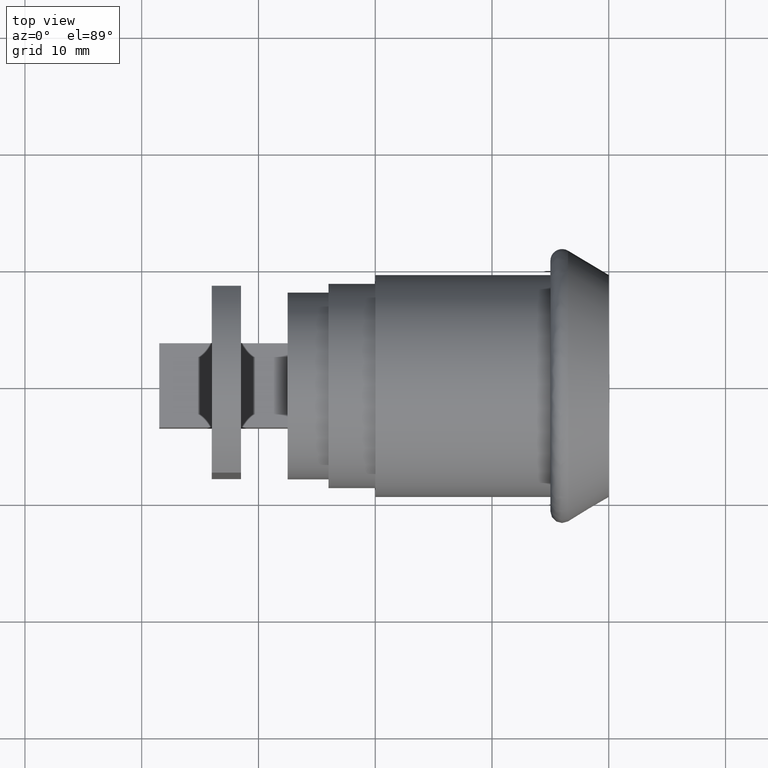
[diagram: clean part render]
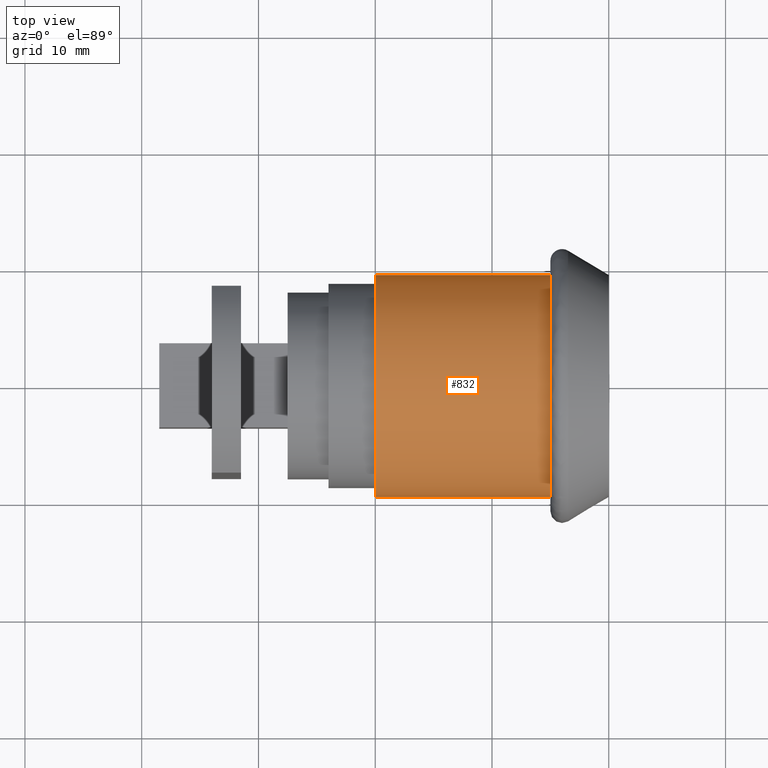
[diagram: same view with one face highlighted and labeled with its STEP entity id]
A machine part, top view. The second image highlights one B-rep face of the part: STEP entity #832.
In plain terms, the highlighted cylindrical surface (bore or boss wall) has radius 9.5 mm, axis along (1, 0, 0).
Its self-contained STEP definition (entity closure, byte-faithful):
#777=CARTESIAN_POINT('',(-5.000000000000426,9.500000000000739,0.0));
#778=VERTEX_POINT('',#777);
#779=CARTESIAN_POINT('',(-5.000000000000426,-9.500000000000739,0.0));
#780=VERTEX_POINT('',#779);
#781=CARTESIAN_POINT('',(-5.000000000000426,0.0,0.0));
#782=DIRECTION('',(1.0,0.0,0.0));
#783=DIRECTION('',(0.0,1.0,0.0));
#784=AXIS2_PLACEMENT_3D('',#781,#782,#783);
#785=CIRCLE('',#784,9.500000000000739);
#786=EDGE_CURVE('',#778,#780,#785,.T.);
#788=CARTESIAN_POINT('',(-5.000000000000426,0.0,0.0));
#789=DIRECTION('',(1.0,0.0,0.0));
#790=DIRECTION('',(0.0,1.0,0.0));
#791=AXIS2_PLACEMENT_3D('',#788,#789,#790);
#792=CIRCLE('',#791,9.500000000000739);
#793=EDGE_CURVE('',#780,#778,#792,.T.);
#798=CARTESIAN_POINT('',(-5.000000000000426,0.0,0.0));
#799=DIRECTION('',(1.0,0.0,0.0));
#800=DIRECTION('',(0.0,1.0,0.0));
#801=AXIS2_PLACEMENT_3D('',#798,#799,#800);
#802=CYLINDRICAL_SURFACE('',#801,9.500000000000739);
#803=CARTESIAN_POINT('',(-19.999999999999986,9.500000000000739,0.0));
#804=VERTEX_POINT('',#803);
#805=CARTESIAN_POINT('',(-5.000000000000426,9.500000000000739,0.0));
#806=DIRECTION('',(-1.0,0.0,0.0));
#807=VECTOR('',#806,14.999999999999559);
#808=LINE('',#805,#807);
#809=EDGE_CURVE('',#778,#804,#808,.T.);
#810=ORIENTED_EDGE('',*,*,#809,.T.);
#811=CARTESIAN_POINT('',(-19.999999999999986,-9.500000000000739,0.0));
#812=VERTEX_POINT('',#811);
#813=CARTESIAN_POINT('',(-19.999999999999986,0.0,0.0));
#814=DIRECTION('',(1.0,0.0,0.0));
#815=DIRECTION('',(0.0,1.0,0.0));
#816=AXIS2_PLACEMENT_3D('',#813,#814,#815);
#817=CIRCLE('',#816,9.500000000000739);
#818=EDGE_CURVE('',#804,#812,#817,.T.);
#819=ORIENTED_EDGE('',*,*,#818,.T.);
#820=CARTESIAN_POINT('',(-19.999999999999986,0.0,0.0));
#821=DIRECTION('',(1.0,0.0,0.0));
#822=DIRECTION('',(0.0,1.0,0.0));
#823=AXIS2_PLACEMENT_3D('',#820,#821,#822);
#824=CIRCLE('',#823,9.500000000000739);
#825=EDGE_CURVE('',#812,#804,#824,.T.);
#826=ORIENTED_EDGE('',*,*,#825,.T.);
#827=ORIENTED_EDGE('',*,*,#809,.F.);
#828=ORIENTED_EDGE('',*,*,#793,.F.);
#829=ORIENTED_EDGE('',*,*,#786,.F.);
#830=EDGE_LOOP('',(#810,#819,#826,#827,#828,#829));
#831=FACE_OUTER_BOUND('',#830,.T.);
#832=ADVANCED_FACE('',(#831),#802,.T.);